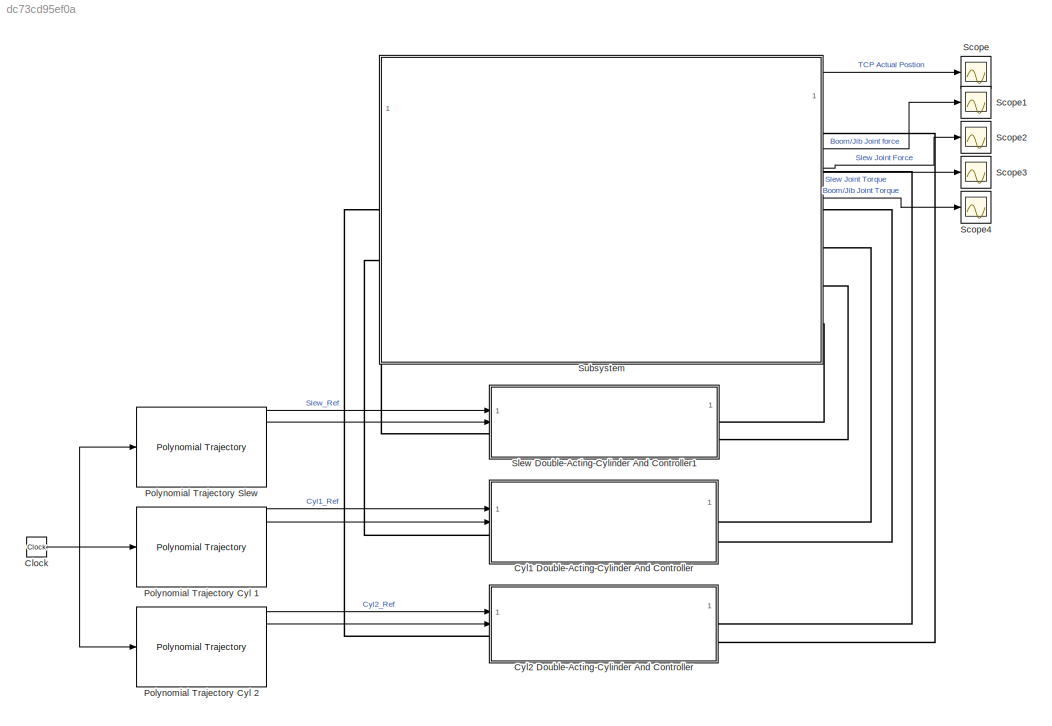
MODEL slx_dc73cd95ef0a
KIND model
CONFIG AbsTol = auto
CONFIG EnableMultiTasking = off
CONFIG FixedStep = 0.001
CONFIG MaxStep = auto
CONFIG MinStep = auto
CONFIG RelTol = 1e-3
CONFIG SampleTimeConstraint = Unconstrained
CONFIG SolverName = VariableStepAuto
CONFIG StartTime = 0.0
CONFIG StopTime = 41
BLOCK [Clock] Clock
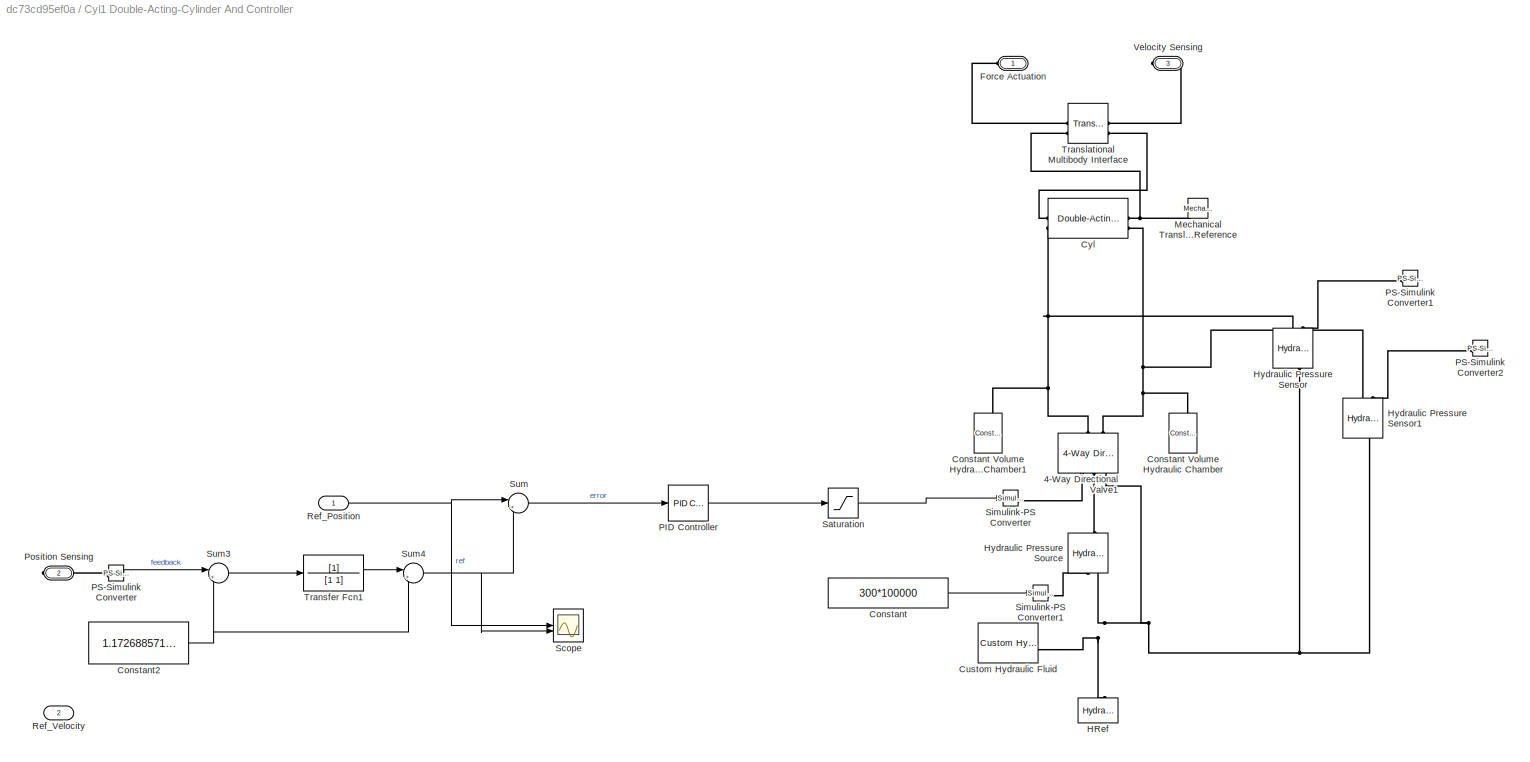
BLOCK [SubSystem] Cyl1 Double-Acting-Cylinder And Controller
  PortSchema = {"entries":[{"content":{"sides":[{"content":{"connectorIds":["LConn1","In1","In2"]},"type":"ConnectorPlacement.EquallySpacedRectSide","uuid":"3735ed3e-66b3-4361-8e3e-ac353a229971"},{"content":{"connectorIds":["RConn1","RConn2"],"side":"RIGHT"},"type":"ConnectorPlacement.EquallySpacedRectSide","uuid":"947d76e9-71c3-4ee6-82dc-1daca18839e3"},{"content":{"side":"TOP"},"type":"ConnectorPlacement.Equall...<+248ch>
BLOCK [Reference] Cyl1 Double-Acting-Cylinder And Controller/4-Way Directional Valve1  REF=sh_lib/Valves/Directional Valves/4-Way Directional
Valve
  NameLocation = right
  SourceBlock = sh_lib/Valves/Directional Valves/4-Way Directional\nValve
  SourceType = 4-Way Directional\nValve
BLOCK [Constant] Cyl1 Double-Acting-Cylinder And Controller/Constant
  Value = 300*100000
BLOCK [Reference] Cyl1 Double-Acting-Cylinder And Controller/Constant Volume Hydraulic Chamber  REF=fl_lib/Hydraulic/Hydraulic Elements/Constant Volume
Hydraulic Chamber
  NameLocation = right
  SourceBlock = fl_lib/Hydraulic/Hydraulic Elements/Constant Volume\nHydraulic Chamber
  SourceType = Constant Volume\nHydraulic Chamber
BLOCK [Reference] Cyl1 Double-Acting-Cylinder And Controller/Constant Volume Hydraulic Chamber1  REF=fl_lib/Hydraulic/Hydraulic Elements/Constant Volume
Hydraulic Chamber
  NameLocation = right
  SourceBlock = fl_lib/Hydraulic/Hydraulic Elements/Constant Volume\nHydraulic Chamber
  SourceType = Constant Volume\nHydraulic Chamber
BLOCK [Constant] Cyl1 Double-Acting-Cylinder And Controller/Constant2
  Value = 1.172688571370079
BLOCK [Reference] Cyl1 Double-Acting-Cylinder And Controller/Custom Hydraulic Fluid  REF=fl_lib/Hydraulic/Hydraulic Utilities/Custom Hydraulic
Fluid
  SourceBlock = fl_lib/Hydraulic/Hydraulic Utilities/Custom Hydraulic\nFluid
  SourceType = Custom Hydraulic\nFluid
BLOCK [Reference] Cyl1 Double-Acting-Cylinder And Controller/Cyl  REF=sh_lib/Hydraulic Cylinders/Double-Acting
Hydraulic Cylinder
  SourceBlock = sh_lib/Hydraulic Cylinders/Double-Acting\nHydraulic Cylinder
  SourceType = Double-Acting\nHydraulic Cylinder
  Tag = Factory Generic
BLOCK [PMIOPort] Cyl1 Double-Acting-Cylinder And Controller/Force Actuation
  Side = Left
BLOCK [Reference] Cyl1 Double-Acting-Cylinder And Controller/HRef  REF=fl_lib/Hydraulic/Hydraulic Elements/Hydraulic Reference
  NameLocation = left
  SourceBlock = fl_lib/Hydraulic/Hydraulic Elements/Hydraulic Reference
  SourceType = Hydraulic Reference
  Tag = Factory Generic
BLOCK [Reference] Cyl1 Double-Acting-Cylinder And Controller/Hydraulic Pressure Sensor  REF=fl_lib/Hydraulic/Hydraulic Sensors/Hydraulic Pressure
Sensor
  NameLocation = right
  SourceBlock = fl_lib/Hydraulic/Hydraulic Sensors/Hydraulic Pressure\nSensor
  SourceType = Hydraulic Pressure\nSensor
BLOCK [Reference] Cyl1 Double-Acting-Cylinder And Controller/Hydraulic Pressure Sensor1  REF=fl_lib/Hydraulic/Hydraulic Sensors/Hydraulic Pressure
Sensor
  NameLocation = right
  SourceBlock = fl_lib/Hydraulic/Hydraulic Sensors/Hydraulic Pressure\nSensor
  SourceType = Hydraulic Pressure\nSensor
BLOCK [Reference] Cyl1 Double-Acting-Cylinder And Controller/Hydraulic Pressure Source  REF=fl_lib/Hydraulic/Hydraulic Sources/Hydraulic Pressure
Source
  NameLocation = right
  SourceBlock = fl_lib/Hydraulic/Hydraulic Sources/Hydraulic Pressure\nSource
  SourceType = Hydraulic Pressure\nSource
BLOCK [Reference] Cyl1 Double-Acting-Cylinder And Controller/Mechanical Translational Reference  REF=fl_lib/Mechanical/Translational
Elements/Mechanical
Translational
Reference
  NameLocation = top
  SourceBlock = fl_lib/Mechanical/Translational\nElements/Mechanical\nTranslational\nReference
  SourceType = Mechanical\nTranslational\nReference
BLOCK [Reference] Cyl1 Double-Acting-Cylinder And Controller/PID Controller  REF=slpidlib/PID Controller
  LibrarySourceBlock = simulink/Continuous/PID Controller
  SourceBlock = slpidlib/PID Controller
  SourceType = PID 1dof
BLOCK [Reference] Cyl1 Double-Acting-Cylinder And Controller/PS-Simulink Converter  REF=nesl_utility/PS-Simulink
Converter
  SourceBlock = nesl_utility/PS-Simulink\nConverter
  SourceType = PS-Simulink\nConverter
BLOCK [Reference] Cyl1 Double-Acting-Cylinder And Controller/PS-Simulink Converter1  REF=nesl_utility/PS-Simulink
Converter
  SourceBlock = nesl_utility/PS-Simulink\nConverter
  SourceType = PS-Simulink\nConverter
BLOCK [Reference] Cyl1 Double-Acting-Cylinder And Controller/PS-Simulink Converter2  REF=nesl_utility/PS-Simulink
Converter
  SourceBlock = nesl_utility/PS-Simulink\nConverter
  SourceType = PS-Simulink\nConverter
BLOCK [PMIOPort] Cyl1 Double-Acting-Cylinder And Controller/Position Sensing
  Port = 2
  Side = Right
BLOCK [Inport] Cyl1 Double-Acting-Cylinder And Controller/Ref_Position
BLOCK [Inport] Cyl1 Double-Acting-Cylinder And Controller/Ref_Velocity
  Port = 2
BLOCK [Saturate] Cyl1 Double-Acting-Cylinder And Controller/Saturation
  LowerLimit = -1
  UpperLimit = 1
BLOCK [Scope] Cyl1 Double-Acting-Cylinder And Controller/Scope
  Floating = off
  NumInputPorts = 2
  ScopeSpecificationString = Simulink.scopes.TimeScopeBlockCfg('CurrentConfiguration', extmgr.ConfigurationSet(extmgr.Configuration('Core','General UI',true),extmgr.Configuration('Core','Source UI',true),extmgr.Configuration('Sources','WiredSimulink',true,'DataLoggingVariableName','ScopeData2'),extmgr.Configuration('Visuals','Time Domain',true,'SerializedDisplays',{struct('MinYLimReal','1.13435','MaxYLimReal','1.51774','YLabe...<+1435ch>
BLOCK [Reference] Cyl1 Double-Acting-Cylinder And Controller/Simulink-PS Converter  REF=nesl_utility/Simulink-PS
Converter
  SourceBlock = nesl_utility/Simulink-PS\nConverter
  SourceType = Simulink-PS\nConverter
BLOCK [Reference] Cyl1 Double-Acting-Cylinder And Controller/Simulink-PS Converter1  REF=nesl_utility/Simulink-PS
Converter
  SourceBlock = nesl_utility/Simulink-PS\nConverter
  SourceType = Simulink-PS\nConverter
BLOCK [Sum] Cyl1 Double-Acting-Cylinder And Controller/Sum
  Inputs = |+-
BLOCK [Sum] Cyl1 Double-Acting-Cylinder And Controller/Sum3
  Inputs = |+-
BLOCK [Sum] Cyl1 Double-Acting-Cylinder And Controller/Sum4
  Inputs = |++
BLOCK [TransferFcn] Cyl1 Double-Acting-Cylinder And Controller/Transfer Fcn1
  Denominator = [1 1]
BLOCK [Reference] Cyl1 Double-Acting-Cylinder And Controller/Translational Multibody Interface  REF=fl_lib/Mechanical/Multibody Interfaces/Translational
Multibody Interface
  SourceBlock = fl_lib/Mechanical/Multibody Interfaces/Translational\nMultibody Interface
  SourceType = Translational\nMultibody Interface
BLOCK [PMIOPort] Cyl1 Double-Acting-Cylinder And Controller/Velocity Sensing
  Port = 3
  Side = Right
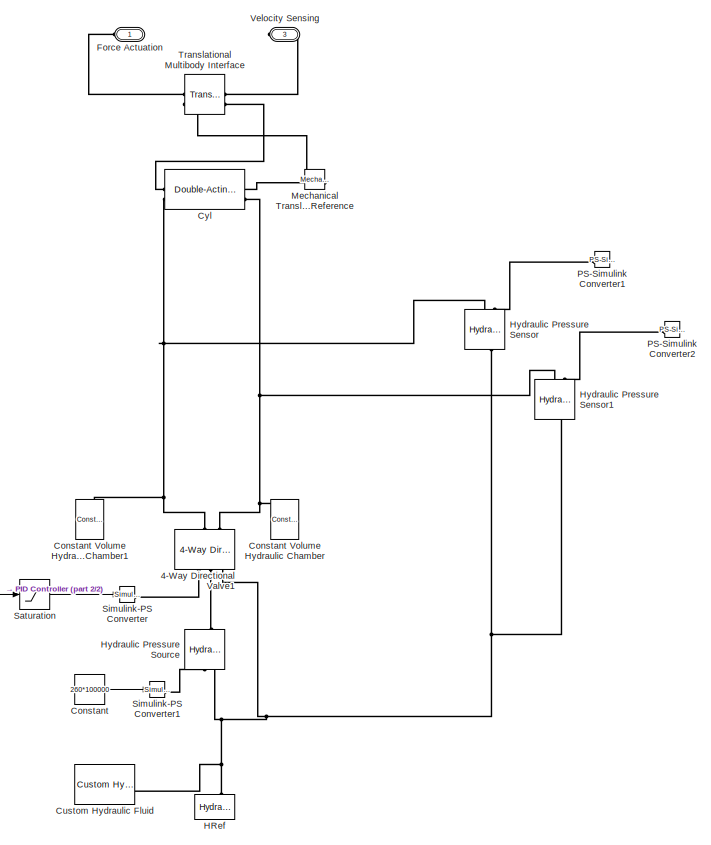
[diagram: Cyl2 Double-Acting-Cylinder And Controller - part 1/2, right side, full height]
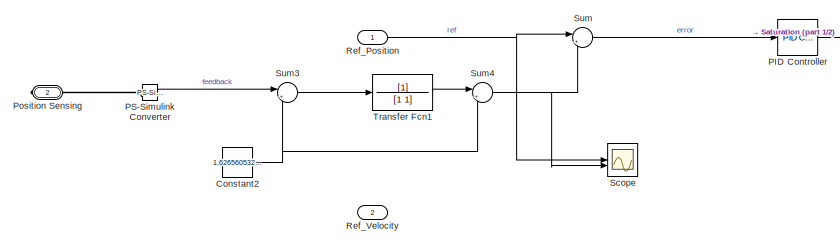
[diagram: Cyl2 Double-Acting-Cylinder And Controller - part 2/2, bottom left region]
BLOCK [SubSystem] Cyl2 Double-Acting-Cylinder And Controller
  PortSchema = {"entries":[{"content":{"sides":[{"content":{"connectorIds":["LConn1","In1","In2"]},"type":"ConnectorPlacement.EquallySpacedRectSide","uuid":"3735ed3e-66b3-4361-8e3e-ac353a229971"},{"content":{"connectorIds":["RConn1","RConn2"],"side":"RIGHT"},"type":"ConnectorPlacement.EquallySpacedRectSide","uuid":"947d76e9-71c3-4ee6-82dc-1daca18839e3"},{"content":{"side":"TOP"},"type":"ConnectorPlacement.Equall...<+248ch>
BLOCK [Reference] Cyl2 Double-Acting-Cylinder And Controller/4-Way Directional Valve1  REF=sh_lib/Valves/Directional Valves/4-Way Directional
Valve
  NameLocation = right
  SourceBlock = sh_lib/Valves/Directional Valves/4-Way Directional\nValve
  SourceType = 4-Way Directional\nValve
BLOCK [Constant] Cyl2 Double-Acting-Cylinder And Controller/Constant
  Value = 260*100000
BLOCK [Reference] Cyl2 Double-Acting-Cylinder And Controller/Constant Volume Hydraulic Chamber  REF=fl_lib/Hydraulic/Hydraulic Elements/Constant Volume
Hydraulic Chamber
  NameLocation = right
  SourceBlock = fl_lib/Hydraulic/Hydraulic Elements/Constant Volume\nHydraulic Chamber
  SourceType = Constant Volume\nHydraulic Chamber
BLOCK [Reference] Cyl2 Double-Acting-Cylinder And Controller/Constant Volume Hydraulic Chamber1  REF=fl_lib/Hydraulic/Hydraulic Elements/Constant Volume
Hydraulic Chamber
  NameLocation = right
  SourceBlock = fl_lib/Hydraulic/Hydraulic Elements/Constant Volume\nHydraulic Chamber
  SourceType = Constant Volume\nHydraulic Chamber
BLOCK [Constant] Cyl2 Double-Acting-Cylinder And Controller/Constant2
  Value = 1.626560532011881
BLOCK [Reference] Cyl2 Double-Acting-Cylinder And Controller/Custom Hydraulic Fluid  REF=fl_lib/Hydraulic/Hydraulic Utilities/Custom Hydraulic
Fluid
  SourceBlock = fl_lib/Hydraulic/Hydraulic Utilities/Custom Hydraulic\nFluid
  SourceType = Custom Hydraulic\nFluid
BLOCK [Reference] Cyl2 Double-Acting-Cylinder And Controller/Cyl  REF=sh_lib/Hydraulic Cylinders/Double-Acting
Hydraulic Cylinder
  SourceBlock = sh_lib/Hydraulic Cylinders/Double-Acting\nHydraulic Cylinder
  SourceType = Double-Acting\nHydraulic Cylinder
  Tag = Factory Generic
BLOCK [PMIOPort] Cyl2 Double-Acting-Cylinder And Controller/Force Actuation
  Side = Left
BLOCK [Reference] Cyl2 Double-Acting-Cylinder And Controller/HRef  REF=fl_lib/Hydraulic/Hydraulic Elements/Hydraulic Reference
  NameLocation = left
  SourceBlock = fl_lib/Hydraulic/Hydraulic Elements/Hydraulic Reference
  SourceType = Hydraulic Reference
  Tag = Factory Generic
BLOCK [Reference] Cyl2 Double-Acting-Cylinder And Controller/Hydraulic Pressure Sensor  REF=fl_lib/Hydraulic/Hydraulic Sensors/Hydraulic Pressure
Sensor
  NameLocation = right
  SourceBlock = fl_lib/Hydraulic/Hydraulic Sensors/Hydraulic Pressure\nSensor
  SourceType = Hydraulic Pressure\nSensor
BLOCK [Reference] Cyl2 Double-Acting-Cylinder And Controller/Hydraulic Pressure Sensor1  REF=fl_lib/Hydraulic/Hydraulic Sensors/Hydraulic Pressure
Sensor
  NameLocation = right
  SourceBlock = fl_lib/Hydraulic/Hydraulic Sensors/Hydraulic Pressure\nSensor
  SourceType = Hydraulic Pressure\nSensor
BLOCK [Reference] Cyl2 Double-Acting-Cylinder And Controller/Hydraulic Pressure Source  REF=fl_lib/Hydraulic/Hydraulic Sources/Hydraulic Pressure
Source
  NameLocation = right
  SourceBlock = fl_lib/Hydraulic/Hydraulic Sources/Hydraulic Pressure\nSource
  SourceType = Hydraulic Pressure\nSource
BLOCK [Reference] Cyl2 Double-Acting-Cylinder And Controller/Mechanical Translational Reference  REF=fl_lib/Mechanical/Translational
Elements/Mechanical
Translational
Reference
  NameLocation = top
  SourceBlock = fl_lib/Mechanical/Translational\nElements/Mechanical\nTranslational\nReference
  SourceType = Mechanical\nTranslational\nReference
BLOCK [Reference] Cyl2 Double-Acting-Cylinder And Controller/PID Controller  REF=slpidlib/PID Controller
  LibrarySourceBlock = simulink/Continuous/PID Controller
  SourceBlock = slpidlib/PID Controller
  SourceType = PID 1dof
BLOCK [Reference] Cyl2 Double-Acting-Cylinder And Controller/PS-Simulink Converter  REF=nesl_utility/PS-Simulink
Converter
  SourceBlock = nesl_utility/PS-Simulink\nConverter
  SourceType = PS-Simulink\nConverter
BLOCK [Reference] Cyl2 Double-Acting-Cylinder And Controller/PS-Simulink Converter1  REF=nesl_utility/PS-Simulink
Converter
  SourceBlock = nesl_utility/PS-Simulink\nConverter
  SourceType = PS-Simulink\nConverter
BLOCK [Reference] Cyl2 Double-Acting-Cylinder And Controller/PS-Simulink Converter2  REF=nesl_utility/PS-Simulink
Converter
  SourceBlock = nesl_utility/PS-Simulink\nConverter
  SourceType = PS-Simulink\nConverter
BLOCK [PMIOPort] Cyl2 Double-Acting-Cylinder And Controller/Position Sensing
  Port = 2
  Side = Right
BLOCK [Inport] Cyl2 Double-Acting-Cylinder And Controller/Ref_Position
BLOCK [Inport] Cyl2 Double-Acting-Cylinder And Controller/Ref_Velocity
  Port = 2
BLOCK [Saturate] Cyl2 Double-Acting-Cylinder And Controller/Saturation
  LowerLimit = -1
  UpperLimit = 1
BLOCK [Scope] Cyl2 Double-Acting-Cylinder And Controller/Scope
  Floating = off
  NumInputPorts = 2
  ScopeSpecificationString = Simulink.scopes.TimeScopeBlockCfg('CurrentConfiguration', extmgr.ConfigurationSet(extmgr.Configuration('Core','General UI',true),extmgr.Configuration('Core','Source UI',true),extmgr.Configuration('Sources','WiredSimulink',true,'DataLoggingVariableName','ScopeData3'),extmgr.Configuration('Visuals','Time Domain',true,'SerializedDisplays',{struct('MinYLimReal','1.41879','MaxYLimReal','1.64968','YLabe...<+1422ch>
BLOCK [Reference] Cyl2 Double-Acting-Cylinder And Controller/Simulink-PS Converter  REF=nesl_utility/Simulink-PS
Converter
  SourceBlock = nesl_utility/Simulink-PS\nConverter
  SourceType = Simulink-PS\nConverter
BLOCK [Reference] Cyl2 Double-Acting-Cylinder And Controller/Simulink-PS Converter1  REF=nesl_utility/Simulink-PS
Converter
  SourceBlock = nesl_utility/Simulink-PS\nConverter
  SourceType = Simulink-PS\nConverter
BLOCK [Sum] Cyl2 Double-Acting-Cylinder And Controller/Sum
  Inputs = |+-
BLOCK [Sum] Cyl2 Double-Acting-Cylinder And Controller/Sum3
  Inputs = |+-
BLOCK [Sum] Cyl2 Double-Acting-Cylinder And Controller/Sum4
  Inputs = |++
BLOCK [TransferFcn] Cyl2 Double-Acting-Cylinder And Controller/Transfer Fcn1
  Denominator = [1 1]
BLOCK [Reference] Cyl2 Double-Acting-Cylinder And Controller/Translational Multibody Interface  REF=fl_lib/Mechanical/Multibody Interfaces/Translational
Multibody Interface
  SourceBlock = fl_lib/Mechanical/Multibody Interfaces/Translational\nMultibody Interface
  SourceType = Translational\nMultibody Interface
BLOCK [PMIOPort] Cyl2 Double-Acting-Cylinder And Controller/Velocity Sensing
  Port = 3
  Side = Right
BLOCK [Reference] Polynomial Trajectory Cyl 1  REF=robotcorelib/Polynomial Trajectory
  LibrarySourceBlock = robotutilslib/Polynomial Trajectory
  SourceBlock = robotcorelib/Polynomial Trajectory
  SourceType = robotics.slcore.internal.block.PolyTrajSys
BLOCK [Reference] Polynomial Trajectory Cyl 2  REF=robotcorelib/Polynomial Trajectory
  LibrarySourceBlock = robotutilslib/Polynomial Trajectory
  SourceBlock = robotcorelib/Polynomial Trajectory
  SourceType = robotics.slcore.internal.block.PolyTrajSys
BLOCK [Reference] Polynomial Trajectory Slew  REF=robotcorelib/Polynomial Trajectory
  LibrarySourceBlock = robotutilslib/Polynomial Trajectory
  SourceBlock = robotcorelib/Polynomial Trajectory
  SourceType = robotics.slcore.internal.block.PolyTrajSys
BLOCK [Scope] Scope
  Commented = on
  Floating = off
  NumInputPorts = 1
  ScopeSpecificationString = Simulink.scopes.TimeScopeBlockCfg('CurrentConfiguration', extmgr.ConfigurationSet(extmgr.Configuration('Core','General UI',true),extmgr.Configuration('Core','Source UI',true),extmgr.Configuration('Sources','WiredSimulink',true),extmgr.Configuration('Visuals','Time Domain',true,'SerializedDisplays',{struct('MinYLimReal','-2.882','MaxYLimReal','3.9351','YLabelReal','','MinYLimMag','0.00000','MaxYLim...<+1396ch>
BLOCK [Scope] Scope1
  Commented = on
  Floating = off
  NumInputPorts = 1
  ScopeSpecificationString = Simulink.scopes.TimeScopeBlockCfg('CurrentConfiguration', extmgr.ConfigurationSet(extmgr.Configuration('Core','General UI',true),extmgr.Configuration('Core','Source UI',true),extmgr.Configuration('Sources','WiredSimulink',true,'DataLoggingVariableName','ScopeData1'),extmgr.Configuration('Visuals','Time Domain',true,'SerializedDisplays',{struct('MinYLimReal','-122424.60187','MaxYLimReal','217376.11...<+1505ch>
BLOCK [Scope] Scope2
  Commented = on
  Floating = off
  NumInputPorts = 1
  ScopeSpecificationString = Simulink.scopes.TimeScopeBlockCfg('CurrentConfiguration', extmgr.ConfigurationSet(extmgr.Configuration('Core','General UI',true),extmgr.Configuration('Core','Source UI',true),extmgr.Configuration('Sources','WiredSimulink',true,'DataLoggingVariableName','ScopeData2'),extmgr.Configuration('Visuals','Time Domain',true,'SerializedDisplays',{struct('MinYLimReal','-41084.57147','MaxYLimReal','26009.9426...<+1447ch>
BLOCK [Scope] Scope3
  Commented = on
  Floating = off
  NumInputPorts = 1
  ScopeSpecificationString = Simulink.scopes.TimeScopeBlockCfg('CurrentConfiguration', extmgr.ConfigurationSet(extmgr.Configuration('Core','General UI',true),extmgr.Configuration('Core','Source UI',true),extmgr.Configuration('Sources','WiredSimulink',true,'DataLoggingVariableName','ScopeData3'),extmgr.Configuration('Visuals','Time Domain',true,'SerializedDisplays',{struct('MinYLimReal','-79425.33864','MaxYLimReal','71254.3750...<+1484ch>
BLOCK [Scope] Scope4
  Commented = on
  Floating = off
  NumInputPorts = 1
  ScopeSpecificationString = Simulink.scopes.TimeScopeBlockCfg('CurrentConfiguration', extmgr.ConfigurationSet(extmgr.Configuration('Core','General UI',true),extmgr.Configuration('Core','Source UI',true),extmgr.Configuration('Sources','WiredSimulink',true,'DataLoggingVariableName','ScopeData4'),extmgr.Configuration('Visuals','Time Domain',true,'SerializedDisplays',{struct('MinYLimReal','-6381.34352','MaxYLimReal','1789.90729'...<+1454ch>
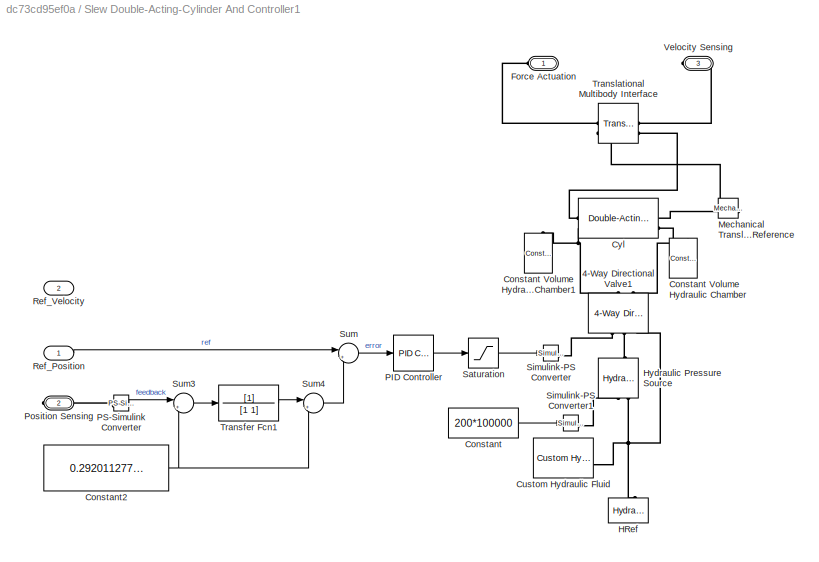
BLOCK [SubSystem] Slew Double-Acting-Cylinder And Controller1
  PortSchema = {"entries":[{"content":{"sides":[{"content":{"connectorIds":["LConn1","In1","In2"]},"type":"ConnectorPlacement.EquallySpacedRectSide","uuid":"3735ed3e-66b3-4361-8e3e-ac353a229971"},{"content":{"connectorIds":["RConn1","RConn2"],"side":"RIGHT"},"type":"ConnectorPlacement.EquallySpacedRectSide","uuid":"947d76e9-71c3-4ee6-82dc-1daca18839e3"},{"content":{"side":"TOP"},"type":"ConnectorPlacement.Equall...<+374ch>
BLOCK [Reference] Slew Double-Acting-Cylinder And Controller1/4-Way Directional Valve1  REF=sh_lib/Valves/Directional Valves/4-Way Directional
Valve
  NameLocation = right
  SourceBlock = sh_lib/Valves/Directional Valves/4-Way Directional\nValve
  SourceType = 4-Way Directional\nValve
BLOCK [Constant] Slew Double-Acting-Cylinder And Controller1/Constant
  Value = 200*100000
BLOCK [Reference] Slew Double-Acting-Cylinder And Controller1/Constant Volume Hydraulic Chamber  REF=fl_lib/Hydraulic/Hydraulic Elements/Constant Volume
Hydraulic Chamber
  NameLocation = right
  SourceBlock = fl_lib/Hydraulic/Hydraulic Elements/Constant Volume\nHydraulic Chamber
  SourceType = Constant Volume\nHydraulic Chamber
BLOCK [Reference] Slew Double-Acting-Cylinder And Controller1/Constant Volume Hydraulic Chamber1  REF=fl_lib/Hydraulic/Hydraulic Elements/Constant Volume
Hydraulic Chamber
  NameLocation = right
  SourceBlock = fl_lib/Hydraulic/Hydraulic Elements/Constant Volume\nHydraulic Chamber
  SourceType = Constant Volume\nHydraulic Chamber
BLOCK [Constant] Slew Double-Acting-Cylinder And Controller1/Constant2
  Value = 0.292011277728187
BLOCK [Reference] Slew Double-Acting-Cylinder And Controller1/Custom Hydraulic Fluid  REF=fl_lib/Hydraulic/Hydraulic Utilities/Custom Hydraulic
Fluid
  SourceBlock = fl_lib/Hydraulic/Hydraulic Utilities/Custom Hydraulic\nFluid
  SourceType = Custom Hydraulic\nFluid
BLOCK [Reference] Slew Double-Acting-Cylinder And Controller1/Cyl  REF=sh_lib/Hydraulic Cylinders/Double-Acting
Hydraulic Cylinder
  SourceBlock = sh_lib/Hydraulic Cylinders/Double-Acting\nHydraulic Cylinder
  SourceType = Double-Acting\nHydraulic Cylinder
  Tag = Factory Generic
BLOCK [PMIOPort] Slew Double-Acting-Cylinder And Controller1/Force Actuation
  Side = Left
BLOCK [Reference] Slew Double-Acting-Cylinder And Controller1/HRef  REF=fl_lib/Hydraulic/Hydraulic Elements/Hydraulic Reference
  NameLocation = left
  SourceBlock = fl_lib/Hydraulic/Hydraulic Elements/Hydraulic Reference
  SourceType = Hydraulic Reference
  Tag = Factory Generic
BLOCK [Reference] Slew Double-Acting-Cylinder And Controller1/Hydraulic Pressure Source  REF=fl_lib/Hydraulic/Hydraulic Sources/Hydraulic Pressure
Source
  NameLocation = right
  SourceBlock = fl_lib/Hydraulic/Hydraulic Sources/Hydraulic Pressure\nSource
  SourceType = Hydraulic Pressure\nSource
BLOCK [Reference] Slew Double-Acting-Cylinder And Controller1/Mechanical Translational Reference  REF=fl_lib/Mechanical/Translational
Elements/Mechanical
Translational
Reference
  NameLocation = top
  SourceBlock = fl_lib/Mechanical/Translational\nElements/Mechanical\nTranslational\nReference
  SourceType = Mechanical\nTranslational\nReference
BLOCK [Reference] Slew Double-Acting-Cylinder And Controller1/PID Controller  REF=slpidlib/PID Controller
  LibrarySourceBlock = simulink/Continuous/PID Controller
  SourceBlock = slpidlib/PID Controller
  SourceType = PID 1dof
BLOCK [Reference] Slew Double-Acting-Cylinder And Controller1/PS-Simulink Converter  REF=nesl_utility/PS-Simulink
Converter
  SourceBlock = nesl_utility/PS-Simulink\nConverter
  SourceType = PS-Simulink\nConverter
BLOCK [PMIOPort] Slew Double-Acting-Cylinder And Controller1/Position Sensing
  Port = 2
  Side = Right
BLOCK [Inport] Slew Double-Acting-Cylinder And Controller1/Ref_Position
BLOCK [Inport] Slew Double-Acting-Cylinder And Controller1/Ref_Velocity
  Port = 2
BLOCK [Saturate] Slew Double-Acting-Cylinder And Controller1/Saturation
  LowerLimit = -1
  UpperLimit = 1
BLOCK [Reference] Slew Double-Acting-Cylinder And Controller1/Simulink-PS Converter  REF=nesl_utility/Simulink-PS
Converter
  SourceBlock = nesl_utility/Simulink-PS\nConverter
  SourceType = Simulink-PS\nConverter
BLOCK [Reference] Slew Double-Acting-Cylinder And Controller1/Simulink-PS Converter1  REF=nesl_utility/Simulink-PS
Converter
  SourceBlock = nesl_utility/Simulink-PS\nConverter
  SourceType = Simulink-PS\nConverter
BLOCK [Sum] Slew Double-Acting-Cylinder And Controller1/Sum
  Inputs = |+-
BLOCK [Sum] Slew Double-Acting-Cylinder And Controller1/Sum3
  Inputs = |+-
BLOCK [Sum] Slew Double-Acting-Cylinder And Controller1/Sum4
  Inputs = |++
BLOCK [TransferFcn] Slew Double-Acting-Cylinder And Controller1/Transfer Fcn1
  Denominator = [1 1]
BLOCK [Reference] Slew Double-Acting-Cylinder And Controller1/Translational Multibody Interface  REF=fl_lib/Mechanical/Multibody Interfaces/Translational
Multibody Interface
  SourceBlock = fl_lib/Mechanical/Multibody Interfaces/Translational\nMultibody Interface
  SourceType = Translational\nMultibody Interface
BLOCK [PMIOPort] Slew Double-Acting-Cylinder And Controller1/Velocity Sensing
  Port = 3
  Side = Right
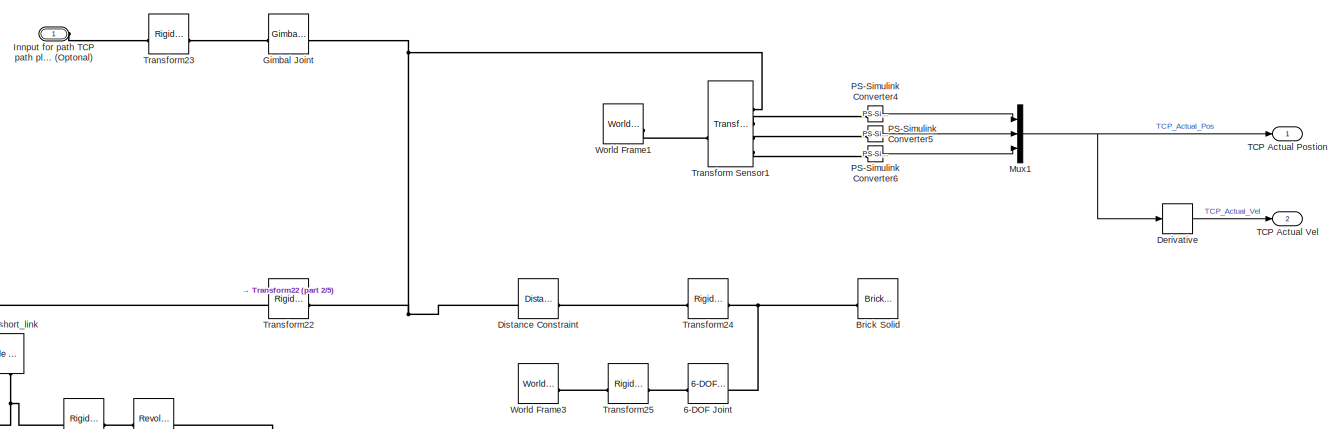
[diagram: Subsystem - part 1/5, top right region]
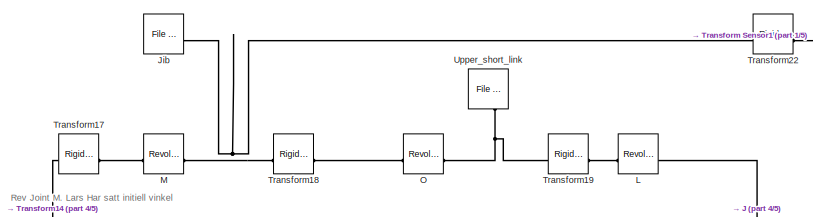
[diagram: Subsystem - part 2/5, top center region]
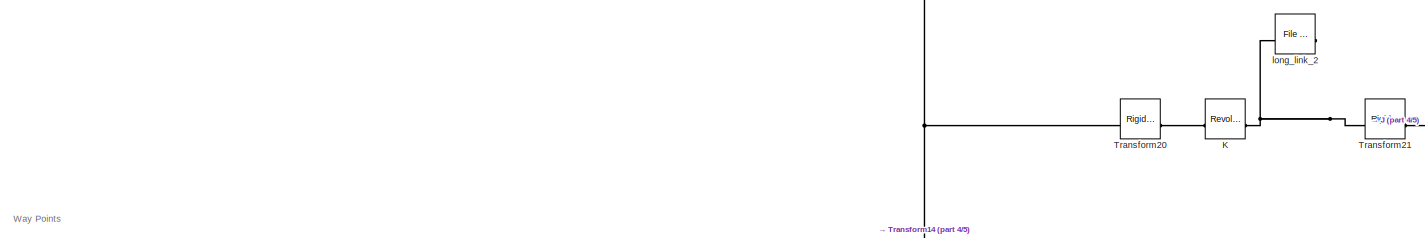
[diagram: Subsystem - part 3/5, middle left region]
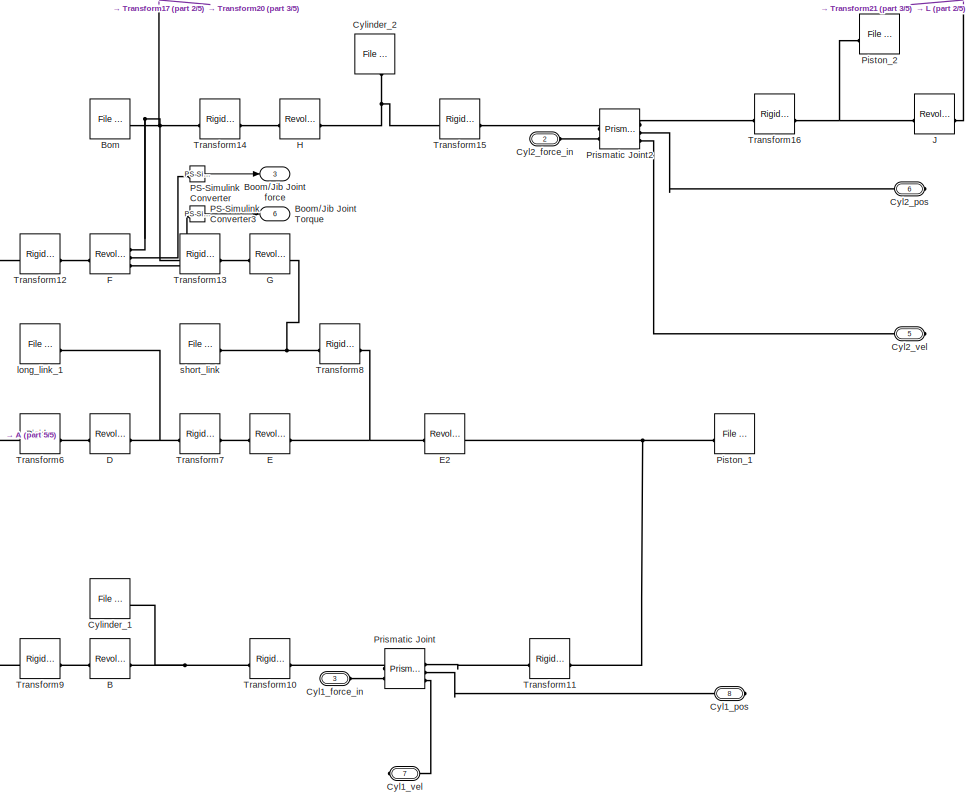
[diagram: Subsystem - part 4/5, bottom center region]
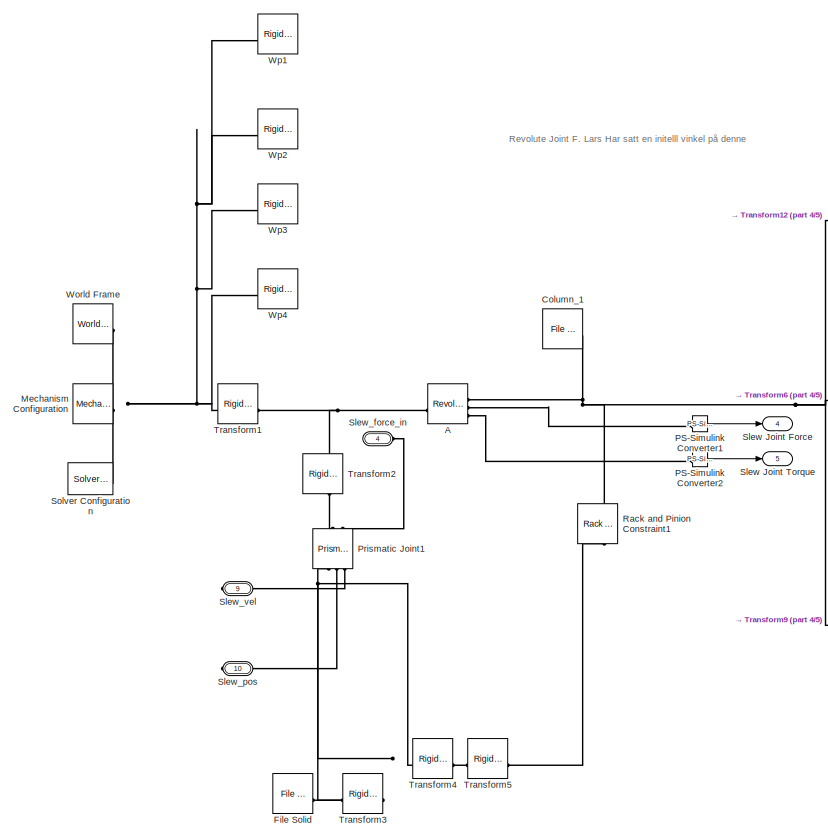
[diagram: Subsystem - part 5/5, bottom left region]
BLOCK [SubSystem] Subsystem
BLOCK [Reference] Subsystem/6-DOF Joint  REF=sm_lib/Joints/6-DOF Joint
  SourceBlock = sm_lib/Joints/6-DOF Joint
  SourceType = 6-DOF Joint
BLOCK [Reference] Subsystem/A  REF=sm_lib/Joints/Revolute Joint
  SourceBlock = sm_lib/Joints/Revolute Joint
  SourceType = Revolute Joint
BLOCK [Reference] Subsystem/B  REF=sm_lib/Joints/Revolute Joint
  SourceBlock = sm_lib/Joints/Revolute Joint
  SourceType = Revolute Joint
BLOCK [Reference] Subsystem/Bom  REF=sm_lib/Body Elements/File Solid
  SourceBlock = sm_lib/Body Elements/File Solid
  SourceType = File Solid
BLOCK [Outport] Subsystem/Boom//Jib Joint Torque
  Port = 6
BLOCK [Outport] Subsystem/Boom//Jib Joint force
  Port = 3
BLOCK [Reference] Subsystem/Brick Solid  REF=sm_lib/Body Elements/Brick Solid
  NameLocation = top
  SourceBlock = sm_lib/Body Elements/Brick Solid
  SourceType = Brick Solid
BLOCK [Reference] Subsystem/Column_1  REF=sm_lib/Body Elements/File Solid
  SourceBlock = sm_lib/Body Elements/File Solid
  SourceType = File Solid
BLOCK [PMIOPort] Subsystem/Cyl1_force_in
  Port = 3
  Side = Left
BLOCK [PMIOPort] Subsystem/Cyl1_pos
  Port = 8
  Side = Right
BLOCK [PMIOPort] Subsystem/Cyl1_vel
  Port = 7
  Side = Right
BLOCK [PMIOPort] Subsystem/Cyl2_force_in
  Port = 2
  Side = Left
BLOCK [PMIOPort] Subsystem/Cyl2_pos
  Port = 6
  Side = Right
BLOCK [PMIOPort] Subsystem/Cyl2_vel
  Port = 5
  Side = Right
BLOCK [Reference] Subsystem/Cylinder_1  REF=sm_lib/Body Elements/File Solid
  SourceBlock = sm_lib/Body Elements/File Solid
  SourceType = File Solid
BLOCK [Reference] Subsystem/Cylinder_2  REF=sm_lib/Body Elements/File Solid
  NameLocation = left
  SourceBlock = sm_lib/Body Elements/File Solid
  SourceType = File Solid
BLOCK [Reference] Subsystem/D  REF=sm_lib/Joints/Revolute Joint
  SourceBlock = sm_lib/Joints/Revolute Joint
  SourceType = Revolute Joint
BLOCK [Derivative] Subsystem/Derivative
  Commented = on
BLOCK [Reference] Subsystem/Distance Constraint  REF=sm_lib/Constraints/Distance
Constraint
  SourceBlock = sm_lib/Constraints/Distance\nConstraint
  SourceType = Distance\nConstraint
BLOCK [Reference] Subsystem/E  REF=sm_lib/Joints/Revolute Joint
  SourceBlock = sm_lib/Joints/Revolute Joint
  SourceType = Revolute Joint
BLOCK [Reference] Subsystem/E2  REF=sm_lib/Joints/Revolute Joint
  SourceBlock = sm_lib/Joints/Revolute Joint
  SourceType = Revolute Joint
BLOCK [Reference] Subsystem/F  REF=sm_lib/Joints/Revolute Joint
  SourceBlock = sm_lib/Joints/Revolute Joint
  SourceType = Revolute Joint
BLOCK [Reference] Subsystem/File Solid  REF=sm_lib/Body Elements/File Solid
  SourceBlock = sm_lib/Body Elements/File Solid
  SourceType = File Solid
BLOCK [Reference] Subsystem/G  REF=sm_lib/Joints/Revolute Joint
  SourceBlock = sm_lib/Joints/Revolute Joint
  SourceType = Revolute Joint
BLOCK [Reference] Subsystem/Gimbal Joint  REF=sm_lib/Joints/Gimbal Joint
  Commented = on
  SourceBlock = sm_lib/Joints/Gimbal Joint
  SourceType = Gimbal Joint
BLOCK [Reference] Subsystem/H  REF=sm_lib/Joints/Revolute Joint
  SourceBlock = sm_lib/Joints/Revolute Joint
  SourceType = Revolute Joint
BLOCK [PMIOPort] Subsystem/Innput for path TCP path planner (Optonal)
  Side = Left
BLOCK [Reference] Subsystem/J  REF=sm_lib/Joints/Revolute Joint
  SourceBlock = sm_lib/Joints/Revolute Joint
  SourceType = Revolute Joint
BLOCK [Reference] Subsystem/Jib  REF=sm_lib/Body Elements/File Solid
  SourceBlock = sm_lib/Body Elements/File Solid
  SourceType = File Solid
BLOCK [Reference] Subsystem/K  REF=sm_lib/Joints/Revolute Joint
  SourceBlock = sm_lib/Joints/Revolute Joint
  SourceType = Revolute Joint
BLOCK [Reference] Subsystem/L  REF=sm_lib/Joints/Revolute Joint
  SourceBlock = sm_lib/Joints/Revolute Joint
  SourceType = Revolute Joint
BLOCK [Reference] Subsystem/M  REF=sm_lib/Joints/Revolute Joint
  SourceBlock = sm_lib/Joints/Revolute Joint
  SourceType = Revolute Joint
BLOCK [Reference] Subsystem/Mechanism Configuration  REF=sm_lib/Utilities/Mechanism
Configuration
  SourceBlock = sm_lib/Utilities/Mechanism\nConfiguration
  SourceType = Mechanism\nConfiguration
BLOCK [Mux] Subsystem/Mux1
  DisplayOption = bar
  Inputs = 3
BLOCK [Reference] Subsystem/O  REF=sm_lib/Joints/Revolute Joint
  SourceBlock = sm_lib/Joints/Revolute Joint
  SourceType = Revolute Joint
BLOCK [Reference] Subsystem/PS-Simulink Converter  REF=nesl_utility/PS-Simulink
Converter
  SourceBlock = nesl_utility/PS-Simulink\nConverter
  SourceType = PS-Simulink\nConverter
BLOCK [Reference] Subsystem/PS-Simulink Converter1  REF=nesl_utility/PS-Simulink
Converter
  SourceBlock = nesl_utility/PS-Simulink\nConverter
  SourceType = PS-Simulink\nConverter
BLOCK [Reference] Subsystem/PS-Simulink Converter2  REF=nesl_utility/PS-Simulink
Converter
  SourceBlock = nesl_utility/PS-Simulink\nConverter
  SourceType = PS-Simulink\nConverter
BLOCK [Reference] Subsystem/PS-Simulink Converter3  REF=nesl_utility/PS-Simulink
Converter
  SourceBlock = nesl_utility/PS-Simulink\nConverter
  SourceType = PS-Simulink\nConverter
BLOCK [Reference] Subsystem/PS-Simulink Converter4  REF=nesl_utility/PS-Simulink
Converter
  SourceBlock = nesl_utility/PS-Simulink\nConverter
  SourceType = PS-Simulink\nConverter
BLOCK [Reference] Subsystem/PS-Simulink Converter5  REF=nesl_utility/PS-Simulink
Converter
  SourceBlock = nesl_utility/PS-Simulink\nConverter
  SourceType = PS-Simulink\nConverter
BLOCK [Reference] Subsystem/PS-Simulink Converter6  REF=nesl_utility/PS-Simulink
Converter
  SourceBlock = nesl_utility/PS-Simulink\nConverter
  SourceType = PS-Simulink\nConverter
BLOCK [Reference] Subsystem/Piston_1  REF=sm_lib/Body Elements/File Solid
  SourceBlock = sm_lib/Body Elements/File Solid
  SourceType = File Solid
BLOCK [Reference] Subsystem/Piston_2  REF=sm_lib/Body Elements/File Solid
  SourceBlock = sm_lib/Body Elements/File Solid
  SourceType = File Solid
BLOCK [Reference] Subsystem/Prismatic Joint  REF=sm_lib/Joints/Prismatic
Joint
  SourceBlock = sm_lib/Joints/Prismatic\nJoint
  SourceType = Prismatic\nJoint
BLOCK [Reference] Subsystem/Prismatic Joint1  REF=sm_lib/Joints/Prismatic
Joint
  NameLocation = left
  SourceBlock = sm_lib/Joints/Prismatic\nJoint
  SourceType = Prismatic\nJoint
BLOCK [Reference] Subsystem/Prismatic Joint2  REF=sm_lib/Joints/Prismatic
Joint
  SourceBlock = sm_lib/Joints/Prismatic\nJoint
  SourceType = Prismatic\nJoint
BLOCK [Reference] Subsystem/Rack and Pinion Constraint1  REF=sm_lib/Gears and
Couplings/Gears/Rack and Pinion
Constraint
  NameLocation = left
  SourceBlock = sm_lib/Gears and\nCouplings/Gears/Rack and Pinion\nConstraint
  SourceType = Rack and Pinion\nConstraint
BLOCK [Outport] Subsystem/Slew Joint Force
  Port = 4
BLOCK [Outport] Subsystem/Slew Joint Torque
  Port = 5
BLOCK [PMIOPort] Subsystem/Slew_force_in
  Port = 4
  Side = Left
BLOCK [PMIOPort] Subsystem/Slew_pos
  Port = 10
  Side = Right
BLOCK [PMIOPort] Subsystem/Slew_vel
  Port = 9
  Side = Right
BLOCK [Reference] Subsystem/Solver Configuration  REF=nesl_utility/Solver
Configuration
  SourceBlock = nesl_utility/Solver\nConfiguration
  SourceType = Solver\nConfiguration
BLOCK [Outport] Subsystem/TCP Actual Postion
BLOCK [Outport] Subsystem/TCP Actual Vel
  Port = 2
BLOCK [Reference] Subsystem/Transform Sensor1  REF=sm_lib/Frames and
Transforms/Transform
Sensor
  SourceBlock = sm_lib/Frames and\nTransforms/Transform\nSensor
  SourceType = Transform\nSensor
BLOCK [Reference] Subsystem/Transform1  REF=sm_lib/Frames and
Transforms/Rigid
Transform
  SourceBlock = sm_lib/Frames and\nTransforms/Rigid\nTransform
  SourceType = Rigid\nTransform
BLOCK [Reference] Subsystem/Transform10  REF=sm_lib/Frames and
Transforms/Rigid
Transform
  SourceBlock = sm_lib/Frames and\nTransforms/Rigid\nTransform
  SourceType = Rigid\nTransform
BLOCK [Reference] Subsystem/Transform11  REF=sm_lib/Frames and
Transforms/Rigid
Transform
  SourceBlock = sm_lib/Frames and\nTransforms/Rigid\nTransform
  SourceType = Rigid\nTransform
BLOCK [Reference] Subsystem/Transform12  REF=sm_lib/Frames and
Transforms/Rigid
Transform
  SourceBlock = sm_lib/Frames and\nTransforms/Rigid\nTransform
  SourceType = Rigid\nTransform
BLOCK [Reference] Subsystem/Transform13  REF=sm_lib/Frames and
Transforms/Rigid
Transform
  SourceBlock = sm_lib/Frames and\nTransforms/Rigid\nTransform
  SourceType = Rigid\nTransform
BLOCK [Reference] Subsystem/Transform14  REF=sm_lib/Frames and
Transforms/Rigid
Transform
  SourceBlock = sm_lib/Frames and\nTransforms/Rigid\nTransform
  SourceType = Rigid\nTransform
BLOCK [Reference] Subsystem/Transform15  REF=sm_lib/Frames and
Transforms/Rigid
Transform
  SourceBlock = sm_lib/Frames and\nTransforms/Rigid\nTransform
  SourceType = Rigid\nTransform
BLOCK [Reference] Subsystem/Transform16  REF=sm_lib/Frames and
Transforms/Rigid
Transform
  NameLocation = top
  SourceBlock = sm_lib/Frames and\nTransforms/Rigid\nTransform
  SourceType = Rigid\nTransform
BLOCK [Reference] Subsystem/Transform17  REF=sm_lib/Frames and
Transforms/Rigid
Transform
  SourceBlock = sm_lib/Frames and\nTransforms/Rigid\nTransform
  SourceType = Rigid\nTransform
BLOCK [Reference] Subsystem/Transform18  REF=sm_lib/Frames and
Transforms/Rigid
Transform
  SourceBlock = sm_lib/Frames and\nTransforms/Rigid\nTransform
  SourceType = Rigid\nTransform
BLOCK [Reference] Subsystem/Transform19  REF=sm_lib/Frames and
Transforms/Rigid
Transform
  SourceBlock = sm_lib/Frames and\nTransforms/Rigid\nTransform
  SourceType = Rigid\nTransform
BLOCK [Reference] Subsystem/Transform2  REF=sm_lib/Frames and
Transforms/Rigid
Transform
  NameLocation = left
  SourceBlock = sm_lib/Frames and\nTransforms/Rigid\nTransform
  SourceType = Rigid\nTransform
BLOCK [Reference] Subsystem/Transform20  REF=sm_lib/Frames and
Transforms/Rigid
Transform
  SourceBlock = sm_lib/Frames and\nTransforms/Rigid\nTransform
  SourceType = Rigid\nTransform
BLOCK [Reference] Subsystem/Transform21  REF=sm_lib/Frames and
Transforms/Rigid
Transform
  SourceBlock = sm_lib/Frames and\nTransforms/Rigid\nTransform
  SourceType = Rigid\nTransform
BLOCK [Reference] Subsystem/Transform22  REF=sm_lib/Frames and
Transforms/Rigid
Transform
  SourceBlock = sm_lib/Frames and\nTransforms/Rigid\nTransform
  SourceType = Rigid\nTransform
BLOCK [Reference] Subsystem/Transform23  REF=sm_lib/Frames and
Transforms/Rigid
Transform
  Commented = on
  SourceBlock = sm_lib/Frames and\nTransforms/Rigid\nTransform
  SourceType = Rigid\nTransform
BLOCK [Reference] Subsystem/Transform24  REF=sm_lib/Frames and
Transforms/Rigid
Transform
  SourceBlock = sm_lib/Frames and\nTransforms/Rigid\nTransform
  SourceType = Rigid\nTransform
BLOCK [Reference] Subsystem/Transform25  REF=sm_lib/Frames and
Transforms/Rigid
Transform
  SourceBlock = sm_lib/Frames and\nTransforms/Rigid\nTransform
  SourceType = Rigid\nTransform
BLOCK [Reference] Subsystem/Transform3  REF=sm_lib/Frames and
Transforms/Rigid
Transform
  SourceBlock = sm_lib/Frames and\nTransforms/Rigid\nTransform
  SourceType = Rigid\nTransform
BLOCK [Reference] Subsystem/Transform4  REF=sm_lib/Frames and
Transforms/Rigid
Transform
  SourceBlock = sm_lib/Frames and\nTransforms/Rigid\nTransform
  SourceType = Rigid\nTransform
BLOCK [Reference] Subsystem/Transform5  REF=sm_lib/Frames and
Transforms/Rigid
Transform
  SourceBlock = sm_lib/Frames and\nTransforms/Rigid\nTransform
  SourceType = Rigid\nTransform
BLOCK [Reference] Subsystem/Transform6  REF=sm_lib/Frames and
Transforms/Rigid
Transform
  SourceBlock = sm_lib/Frames and\nTransforms/Rigid\nTransform
  SourceType = Rigid\nTransform
BLOCK [Reference] Subsystem/Transform7  REF=sm_lib/Frames and
Transforms/Rigid
Transform
  SourceBlock = sm_lib/Frames and\nTransforms/Rigid\nTransform
  SourceType = Rigid\nTransform
BLOCK [Reference] Subsystem/Transform8  REF=sm_lib/Frames and
Transforms/Rigid
Transform
  SourceBlock = sm_lib/Frames and\nTransforms/Rigid\nTransform
  SourceType = Rigid\nTransform
BLOCK [Reference] Subsystem/Transform9  REF=sm_lib/Frames and
Transforms/Rigid
Transform
  SourceBlock = sm_lib/Frames and\nTransforms/Rigid\nTransform
  SourceType = Rigid\nTransform
BLOCK [Reference] Subsystem/Upper_short_link  REF=sm_lib/Body Elements/File Solid
  NameLocation = left
  SourceBlock = sm_lib/Body Elements/File Solid
  SourceType = File Solid
BLOCK [Reference] Subsystem/World Frame  REF=sm_lib/Frames and
Transforms/World Frame
  SourceBlock = sm_lib/Frames and\nTransforms/World Frame
  SourceType = World Frame
BLOCK [Reference] Subsystem/World Frame1  REF=sm_lib/Frames and
Transforms/World Frame
  SourceBlock = sm_lib/Frames and\nTransforms/World Frame
  SourceType = World Frame
BLOCK [Reference] Subsystem/World Frame3  REF=sm_lib/Frames and
Transforms/World Frame
  SourceBlock = sm_lib/Frames and\nTransforms/World Frame
  SourceType = World Frame
BLOCK [Reference] Subsystem/Wp1  REF=sm_lib/Frames and
Transforms/Rigid
Transform
  SourceBlock = sm_lib/Frames and\nTransforms/Rigid\nTransform
  SourceType = Rigid\nTransform
BLOCK [Reference] Subsystem/Wp2  REF=sm_lib/Frames and
Transforms/Rigid
Transform
  SourceBlock = sm_lib/Frames and\nTransforms/Rigid\nTransform
  SourceType = Rigid\nTransform
BLOCK [Reference] Subsystem/Wp3  REF=sm_lib/Frames and
Transforms/Rigid
Transform
  SourceBlock = sm_lib/Frames and\nTransforms/Rigid\nTransform
  SourceType = Rigid\nTransform
BLOCK [Reference] Subsystem/Wp4  REF=sm_lib/Frames and
Transforms/Rigid
Transform
  SourceBlock = sm_lib/Frames and\nTransforms/Rigid\nTransform
  SourceType = Rigid\nTransform
BLOCK [Reference] Subsystem/long_link_1  REF=sm_lib/Body Elements/File Solid
  SourceBlock = sm_lib/Body Elements/File Solid
  SourceType = File Solid
BLOCK [Reference] Subsystem/long_link_2  REF=sm_lib/Body Elements/File Solid
  SourceBlock = sm_lib/Body Elements/File Solid
  SourceType = File Solid
BLOCK [Reference] Subsystem/short_link  REF=sm_lib/Body Elements/File Solid
  SourceBlock = sm_lib/Body Elements/File Solid
  SourceType = File Solid
ANNOTATION Subsystem: Rev Joint M. Lars Har satt initiell vinkel
ANNOTATION Subsystem: Revolute Joint F. Lars Har satt en initelll vinkel på denne
ANNOTATION Subsystem: Way Points
NET Clock:1 -> Polynomial Trajectory Cyl 1:1, Polynomial Trajectory Cyl 2:1, Polynomial Trajectory Slew:1
NET Cyl1 Double-Acting-Cylinder And Controller/Constant2:1 -> Cyl1 Double-Acting-Cylinder And Controller/Sum3:2, Cyl1 Double-Acting-Cylinder And Controller/Sum4:2
LINE Cyl1 Double-Acting-Cylinder And Controller/Constant:1 -> Cyl1 Double-Acting-Cylinder And Controller/Simulink-PS Converter1:1
LINE Cyl1 Double-Acting-Cylinder And Controller/PID Controller:1 -> Cyl1 Double-Acting-Cylinder And Controller/Saturation:1
LINE Cyl1 Double-Acting-Cylinder And Controller/PS-Simulink Converter:1 -> Cyl1 Double-Acting-Cylinder And Controller/Sum3:1
NET Cyl1 Double-Acting-Cylinder And Controller/Ref_Position:1 -> Cyl1 Double-Acting-Cylinder And Controller/Scope:1, Cyl1 Double-Acting-Cylinder And Controller/Sum:1
LINE Cyl1 Double-Acting-Cylinder And Controller/Saturation:1 -> Cyl1 Double-Acting-Cylinder And Controller/Simulink-PS Converter:1
LINE Cyl1 Double-Acting-Cylinder And Controller/Sum3:1 -> Cyl1 Double-Acting-Cylinder And Controller/Transfer Fcn1:1
NET Cyl1 Double-Acting-Cylinder And Controller/Sum4:1 -> Cyl1 Double-Acting-Cylinder And Controller/Scope:2, Cyl1 Double-Acting-Cylinder And Controller/Sum:2
LINE Cyl1 Double-Acting-Cylinder And Controller/Sum:1 -> Cyl1 Double-Acting-Cylinder And Controller/PID Controller:1
LINE Cyl1 Double-Acting-Cylinder And Controller/Transfer Fcn1:1 -> Cyl1 Double-Acting-Cylinder And Controller/Sum4:1
NET Cyl2 Double-Acting-Cylinder And Controller/Constant2:1 -> Cyl2 Double-Acting-Cylinder And Controller/Sum3:2, Cyl2 Double-Acting-Cylinder And Controller/Sum4:2
LINE Cyl2 Double-Acting-Cylinder And Controller/Constant:1 -> Cyl2 Double-Acting-Cylinder And Controller/Simulink-PS Converter1:1
LINE Cyl2 Double-Acting-Cylinder And Controller/PID Controller:1 -> Cyl2 Double-Acting-Cylinder And Controller/Saturation:1
LINE Cyl2 Double-Acting-Cylinder And Controller/PS-Simulink Converter:1 -> Cyl2 Double-Acting-Cylinder And Controller/Sum3:1
NET Cyl2 Double-Acting-Cylinder And Controller/Ref_Position:1 -> Cyl2 Double-Acting-Cylinder And Controller/Scope:1, Cyl2 Double-Acting-Cylinder And Controller/Sum:1
LINE Cyl2 Double-Acting-Cylinder And Controller/Saturation:1 -> Cyl2 Double-Acting-Cylinder And Controller/Simulink-PS Converter:1
LINE Cyl2 Double-Acting-Cylinder And Controller/Sum3:1 -> Cyl2 Double-Acting-Cylinder And Controller/Transfer Fcn1:1
NET Cyl2 Double-Acting-Cylinder And Controller/Sum4:1 -> Cyl2 Double-Acting-Cylinder And Controller/Scope:2, Cyl2 Double-Acting-Cylinder And Controller/Sum:2
LINE Cyl2 Double-Acting-Cylinder And Controller/Sum:1 -> Cyl2 Double-Acting-Cylinder And Controller/PID Controller:1
LINE Cyl2 Double-Acting-Cylinder And Controller/Transfer Fcn1:1 -> Cyl2 Double-Acting-Cylinder And Controller/Sum4:1
LINE Polynomial Trajectory Cyl 1:1 -> Cyl1 Double-Acting-Cylinder And Controller:1
LINE Polynomial Trajectory Cyl 1:2 -> Cyl1 Double-Acting-Cylinder And Controller:2
LINE Polynomial Trajectory Cyl 2:1 -> Cyl2 Double-Acting-Cylinder And Controller:1
LINE Polynomial Trajectory Cyl 2:2 -> Cyl2 Double-Acting-Cylinder And Controller:2
LINE Polynomial Trajectory Slew:1 -> Slew Double-Acting-Cylinder And Controller1:1
LINE Polynomial Trajectory Slew:2 -> Slew Double-Acting-Cylinder And Controller1:2
NET Slew Double-Acting-Cylinder And Controller1/Constant2:1 -> Slew Double-Acting-Cylinder And Controller1/Sum3:2, Slew Double-Acting-Cylinder And Controller1/Sum4:2
LINE Slew Double-Acting-Cylinder And Controller1/Constant:1 -> Slew Double-Acting-Cylinder And Controller1/Simulink-PS Converter1:1
LINE Slew Double-Acting-Cylinder And Controller1/PID Controller:1 -> Slew Double-Acting-Cylinder And Controller1/Saturation:1
LINE Slew Double-Acting-Cylinder And Controller1/PS-Simulink Converter:1 -> Slew Double-Acting-Cylinder And Controller1/Sum3:1
LINE Slew Double-Acting-Cylinder And Controller1/Ref_Position:1 -> Slew Double-Acting-Cylinder And Controller1/Sum:1
LINE Slew Double-Acting-Cylinder And Controller1/Saturation:1 -> Slew Double-Acting-Cylinder And Controller1/Simulink-PS Converter:1
LINE Slew Double-Acting-Cylinder And Controller1/Sum3:1 -> Slew Double-Acting-Cylinder And Controller1/Transfer Fcn1:1
LINE Slew Double-Acting-Cylinder And Controller1/Sum4:1 -> Slew Double-Acting-Cylinder And Controller1/Sum:2
LINE Slew Double-Acting-Cylinder And Controller1/Sum:1 -> Slew Double-Acting-Cylinder And Controller1/PID Controller:1
LINE Slew Double-Acting-Cylinder And Controller1/Transfer Fcn1:1 -> Slew Double-Acting-Cylinder And Controller1/Sum4:1
LINE Subsystem/Derivative:1 -> Subsystem/TCP Actual Vel:1
NET Subsystem/Mux1:1 -> Subsystem/Derivative:1, Subsystem/TCP Actual Postion:1
LINE Subsystem/PS-Simulink Converter1:1 -> Subsystem/Slew Joint Force:1
LINE Subsystem/PS-Simulink Converter2:1 -> Subsystem/Slew Joint Torque:1
LINE Subsystem/PS-Simulink Converter3:1 -> Subsystem/Boom//Jib Joint Torque:1
LINE Subsystem/PS-Simulink Converter4:1 -> Subsystem/Mux1:1
LINE Subsystem/PS-Simulink Converter5:1 -> Subsystem/Mux1:2
LINE Subsystem/PS-Simulink Converter6:1 -> Subsystem/Mux1:3
LINE Subsystem/PS-Simulink Converter:1 -> Subsystem/Boom//Jib Joint force:1
LINE Subsystem:1 -> Scope:1
LINE Subsystem:3 -> Scope1:1
LINE Subsystem:4 -> Scope2:1
LINE Subsystem:5 -> Scope3:1
LINE Subsystem:6 -> Scope4:1
PNET net1: Cyl1 Double-Acting-Cylinder And Controller/4-Way Directional Valve1:LConn1 -- Cyl1 Double-Acting-Cylinder And Controller/Constant Volume Hydraulic Chamber1:LConn1 -- Cyl1 Double-Acting-Cylinder And Controller/Cyl:RConn2 -- Cyl1 Double-Acting-Cylinder And Controller/Hydraulic Pressure Sensor:RConn1
PNET net2: Cyl1 Double-Acting-Cylinder And Controller/4-Way Directional Valve1:LConn2 -- Cyl1 Double-Acting-Cylinder And Controller/Constant Volume Hydraulic Chamber:LConn1 -- Cyl1 Double-Acting-Cylinder And Controller/Cyl:LConn2 -- Cyl1 Double-Acting-Cylinder And Controller/Hydraulic Pressure Sensor1:RConn1
PLINE Cyl1 Double-Acting-Cylinder And Controller/4-Way Directional Valve1:RConn1 -- Cyl1 Double-Acting-Cylinder And Controller/Simulink-PS Converter:RConn1
PLINE Cyl1 Double-Acting-Cylinder And Controller/4-Way Directional Valve1:RConn2 -- Cyl1 Double-Acting-Cylinder And Controller/Hydraulic Pressure Source:LConn1
PNET net3: Cyl1 Double-Acting-Cylinder And Controller/4-Way Directional Valve1:RConn3 -- Cyl1 Double-Acting-Cylinder And Controller/Custom Hydraulic Fluid:RConn1 -- Cyl1 Double-Acting-Cylinder And Controller/HRef:LConn1 -- Cyl1 Double-Acting-Cylinder And Controller/Hydraulic Pressure Sensor1:LConn1 -- Cyl1 Double-Acting-Cylinder And Controller/Hydraulic Pressure Sensor:LConn1 -- Cyl1 Double-Acting-Cylinder And Controller/Hydraulic Pressure Source:RConn2
PNET net4: Cyl1 Double-Acting-Cylinder And Controller/Cyl:LConn1 -- Cyl1 Double-Acting-Cylinder And Controller/Mechanical Translational Reference:LConn1 -- Cyl1 Double-Acting-Cylinder And Controller/Translational Multibody Interface:LConn2
PLINE Cyl1 Double-Acting-Cylinder And Controller/Cyl:RConn1 -- Cyl1 Double-Acting-Cylinder And Controller/Translational Multibody Interface:RConn2
PLINE Cyl1 Double-Acting-Cylinder And Controller/Force Actuation:RConn1 -- Cyl1 Double-Acting-Cylinder And Controller/Translational Multibody Interface:LConn1
PLINE Cyl1 Double-Acting-Cylinder And Controller/Hydraulic Pressure Sensor1:RConn2 -- Cyl1 Double-Acting-Cylinder And Controller/PS-Simulink Converter2:LConn1
PLINE Cyl1 Double-Acting-Cylinder And Controller/Hydraulic Pressure Sensor:RConn2 -- Cyl1 Double-Acting-Cylinder And Controller/PS-Simulink Converter1:LConn1
PLINE Cyl1 Double-Acting-Cylinder And Controller/Hydraulic Pressure Source:RConn1 -- Cyl1 Double-Acting-Cylinder And Controller/Simulink-PS Converter1:RConn1
PLINE Cyl1 Double-Acting-Cylinder And Controller/PS-Simulink Converter:LConn1 -- Cyl1 Double-Acting-Cylinder And Controller/Position Sensing:RConn1
PLINE Cyl1 Double-Acting-Cylinder And Controller/Translational Multibody Interface:RConn1 -- Cyl1 Double-Acting-Cylinder And Controller/Velocity Sensing:RConn1
PLINE Cyl1 Double-Acting-Cylinder And Controller:LConn1 -- Subsystem:LConn3
PLINE Cyl1 Double-Acting-Cylinder And Controller:RConn1 -- Subsystem:RConn4
PLINE Cyl1 Double-Acting-Cylinder And Controller:RConn2 -- Subsystem:RConn3
PNET net5: Cyl2 Double-Acting-Cylinder And Controller/4-Way Directional Valve1:LConn1 -- Cyl2 Double-Acting-Cylinder And Controller/Constant Volume Hydraulic Chamber1:LConn1 -- Cyl2 Double-Acting-Cylinder And Controller/Cyl:RConn2 -- Cyl2 Double-Acting-Cylinder And Controller/Hydraulic Pressure Sensor:RConn1
PNET net6: Cyl2 Double-Acting-Cylinder And Controller/4-Way Directional Valve1:LConn2 -- Cyl2 Double-Acting-Cylinder And Controller/Constant Volume Hydraulic Chamber:LConn1 -- Cyl2 Double-Acting-Cylinder And Controller/Cyl:LConn2 -- Cyl2 Double-Acting-Cylinder And Controller/Hydraulic Pressure Sensor1:RConn1
PLINE Cyl2 Double-Acting-Cylinder And Controller/4-Way Directional Valve1:RConn1 -- Cyl2 Double-Acting-Cylinder And Controller/Simulink-PS Converter:RConn1
PLINE Cyl2 Double-Acting-Cylinder And Controller/4-Way Directional Valve1:RConn2 -- Cyl2 Double-Acting-Cylinder And Controller/Hydraulic Pressure Source:LConn1
PNET net7: Cyl2 Double-Acting-Cylinder And Controller/4-Way Directional Valve1:RConn3 -- Cyl2 Double-Acting-Cylinder And Controller/Custom Hydraulic Fluid:RConn1 -- Cyl2 Double-Acting-Cylinder And Controller/HRef:LConn1 -- Cyl2 Double-Acting-Cylinder And Controller/Hydraulic Pressure Sensor1:LConn1 -- Cyl2 Double-Acting-Cylinder And Controller/Hydraulic Pressure Sensor:LConn1 -- Cyl2 Double-Acting-Cylinder And Controller/Hydraulic Pressure Source:RConn2
PNET net8: Cyl2 Double-Acting-Cylinder And Controller/Cyl:LConn1 -- Cyl2 Double-Acting-Cylinder And Controller/Mechanical Translational Reference:LConn1 -- Cyl2 Double-Acting-Cylinder And Controller/Translational Multibody Interface:LConn2
PLINE Cyl2 Double-Acting-Cylinder And Controller/Cyl:RConn1 -- Cyl2 Double-Acting-Cylinder And Controller/Translational Multibody Interface:RConn2
PLINE Cyl2 Double-Acting-Cylinder And Controller/Force Actuation:RConn1 -- Cyl2 Double-Acting-Cylinder And Controller/Translational Multibody Interface:LConn1
PLINE Cyl2 Double-Acting-Cylinder And Controller/Hydraulic Pressure Sensor1:RConn2 -- Cyl2 Double-Acting-Cylinder And Controller/PS-Simulink Converter2:LConn1
PLINE Cyl2 Double-Acting-Cylinder And Controller/Hydraulic Pressure Sensor:RConn2 -- Cyl2 Double-Acting-Cylinder And Controller/PS-Simulink Converter1:LConn1
PLINE Cyl2 Double-Acting-Cylinder And Controller/Hydraulic Pressure Source:RConn1 -- Cyl2 Double-Acting-Cylinder And Controller/Simulink-PS Converter1:RConn1
PLINE Cyl2 Double-Acting-Cylinder And Controller/PS-Simulink Converter:LConn1 -- Cyl2 Double-Acting-Cylinder And Controller/Position Sensing:RConn1
PLINE Cyl2 Double-Acting-Cylinder And Controller/Translational Multibody Interface:RConn1 -- Cyl2 Double-Acting-Cylinder And Controller/Velocity Sensing:RConn1
PLINE Cyl2 Double-Acting-Cylinder And Controller:LConn1 -- Subsystem:LConn2
PLINE Cyl2 Double-Acting-Cylinder And Controller:RConn1 -- Subsystem:RConn2
PLINE Cyl2 Double-Acting-Cylinder And Controller:RConn2 -- Subsystem:RConn1
PNET net9: Slew Double-Acting-Cylinder And Controller1/4-Way Directional Valve1:LConn1 -- Slew Double-Acting-Cylinder And Controller1/Constant Volume Hydraulic Chamber1:LConn1 -- Slew Double-Acting-Cylinder And Controller1/Cyl:RConn2
PNET net10: Slew Double-Acting-Cylinder And Controller1/4-Way Directional Valve1:LConn2 -- Slew Double-Acting-Cylinder And Controller1/Constant Volume Hydraulic Chamber:LConn1 -- Slew Double-Acting-Cylinder And Controller1/Cyl:LConn2
PLINE Slew Double-Acting-Cylinder And Controller1/4-Way Directional Valve1:RConn1 -- Slew Double-Acting-Cylinder And Controller1/Simulink-PS Converter:RConn1
PLINE Slew Double-Acting-Cylinder And Controller1/4-Way Directional Valve1:RConn2 -- Slew Double-Acting-Cylinder And Controller1/Hydraulic Pressure Source:LConn1
PNET net11: Slew Double-Acting-Cylinder And Controller1/4-Way Directional Valve1:RConn3 -- Slew Double-Acting-Cylinder And Controller1/Custom Hydraulic Fluid:RConn1 -- Slew Double-Acting-Cylinder And Controller1/HRef:LConn1 -- Slew Double-Acting-Cylinder And Controller1/Hydraulic Pressure Source:RConn2
PNET net12: Slew Double-Acting-Cylinder And Controller1/Cyl:LConn1 -- Slew Double-Acting-Cylinder And Controller1/Mechanical Translational Reference:LConn1 -- Slew Double-Acting-Cylinder And Controller1/Translational Multibody Interface:LConn2
PLINE Slew Double-Acting-Cylinder And Controller1/Cyl:RConn1 -- Slew Double-Acting-Cylinder And Controller1/Translational Multibody Interface:RConn2
PLINE Slew Double-Acting-Cylinder And Controller1/Force Actuation:RConn1 -- Slew Double-Acting-Cylinder And Controller1/Translational Multibody Interface:LConn1
PLINE Slew Double-Acting-Cylinder And Controller1/Hydraulic Pressure Source:RConn1 -- Slew Double-Acting-Cylinder And Controller1/Simulink-PS Converter1:RConn1
PLINE Slew Double-Acting-Cylinder And Controller1/PS-Simulink Converter:LConn1 -- Slew Double-Acting-Cylinder And Controller1/Position Sensing:RConn1
PLINE Slew Double-Acting-Cylinder And Controller1/Translational Multibody Interface:RConn1 -- Slew Double-Acting-Cylinder And Controller1/Velocity Sensing:RConn1
PLINE Slew Double-Acting-Cylinder And Controller1:LConn1 -- Subsystem:LConn4
PLINE Slew Double-Acting-Cylinder And Controller1:RConn1 -- Subsystem:RConn6
PLINE Slew Double-Acting-Cylinder And Controller1:RConn2 -- Subsystem:RConn5
PLINE Subsystem/6-DOF Joint:LConn1 -- Subsystem/Transform25:RConn1
PNET net13: Subsystem/6-DOF Joint:RConn1 -- Subsystem/Brick Solid:RConn1 -- Subsystem/Transform24:RConn1
PNET net14: Subsystem/A:LConn1 -- Subsystem/Transform1:RConn1 -- Subsystem/Transform2:LConn1
PNET net15: Subsystem/A:RConn1 -- Subsystem/Column_1:RConn1 -- Subsystem/Rack and Pinion Constraint1:LConn1 -- Subsystem/Transform12:LConn1 -- Subsystem/Transform6:LConn1 -- Subsystem/Transform9:LConn1
PLINE Subsystem/A:RConn2 -- Subsystem/PS-Simulink Converter1:LConn1
PLINE Subsystem/A:RConn3 -- Subsystem/PS-Simulink Converter2:LConn1
PLINE Subsystem/B:LConn1 -- Subsystem/Transform9:RConn1
PNET net16: Subsystem/B:RConn1 -- Subsystem/Cylinder_1:RConn1 -- Subsystem/Transform10:LConn1
PNET net17: Subsystem/Bom:RConn1 -- Subsystem/F:RConn1 -- Subsystem/Transform13:LConn1 -- Subsystem/Transform14:LConn1 -- Subsystem/Transform17:LConn1 -- Subsystem/Transform20:LConn1
PLINE Subsystem/Cyl1_force_in:RConn1 -- Subsystem/Prismatic Joint:LConn2
PLINE Subsystem/Cyl1_pos:RConn1 -- Subsystem/Prismatic Joint:RConn2
PLINE Subsystem/Cyl1_vel:RConn1 -- Subsystem/Prismatic Joint:RConn3
PLINE Subsystem/Cyl2_force_in:RConn1 -- Subsystem/Prismatic Joint2:LConn2
PLINE Subsystem/Cyl2_pos:RConn1 -- Subsystem/Prismatic Joint2:RConn2
PLINE Subsystem/Cyl2_vel:RConn1 -- Subsystem/Prismatic Joint2:RConn3
PNET net18: Subsystem/Cylinder_2:RConn1 -- Subsystem/H:RConn1 -- Subsystem/Transform15:LConn1
PLINE Subsystem/D:LConn1 -- Subsystem/Transform6:RConn1
PNET net19: Subsystem/D:RConn1 -- Subsystem/Transform7:LConn1 -- Subsystem/long_link_1:RConn1
PNET net20: Subsystem/Distance Constraint:LConn1 -- Subsystem/Gimbal Joint:LConn1 -- Subsystem/Transform Sensor1:RConn1 -- Subsystem/Transform22:RConn1
PLINE Subsystem/Distance Constraint:RConn1 -- Subsystem/Transform24:LConn1
PNET net21: Subsystem/E2:LConn1 -- Subsystem/E:RConn1 -- Subsystem/Transform8:RConn1
PNET net22: Subsystem/E2:RConn1 -- Subsystem/Piston_1:RConn1 -- Subsystem/Transform11:LConn1
PLINE Subsystem/E:LConn1 -- Subsystem/Transform7:RConn1
PLINE Subsystem/F:LConn1 -- Subsystem/Transform12:RConn1
PLINE Subsystem/F:RConn2 -- Subsystem/PS-Simulink Converter:LConn1
PLINE Subsystem/F:RConn3 -- Subsystem/PS-Simulink Converter3:LConn1
PLINE Subsystem/File Solid:RConn1 -- Subsystem/Transform3:LConn1
PLINE Subsystem/G:LConn1 -- Subsystem/Transform13:RConn1
PNET net23: Subsystem/G:RConn1 -- Subsystem/Transform8:LConn1 -- Subsystem/short_link:RConn1
PLINE Subsystem/Gimbal Joint:RConn1 -- Subsystem/Transform23:LConn1
PLINE Subsystem/H:LConn1 -- Subsystem/Transform14:RConn1
PLINE Subsystem/Innput for path TCP path planner (Optonal):RConn1 -- Subsystem/Transform23:RConn1
PNET net24: Subsystem/J:LConn1 -- Subsystem/Piston_2:RConn1 -- Subsystem/Transform16:LConn1
PNET net25: Subsystem/J:RConn1 -- Subsystem/L:RConn1 -- Subsystem/Transform21:RConn1
PNET net26: Subsystem/Jib:RConn1 -- Subsystem/M:RConn1 -- Subsystem/Transform18:LConn1 -- Subsystem/Transform22:LConn1
PLINE Subsystem/K:LConn1 -- Subsystem/Transform20:RConn1
PNET net27: Subsystem/K:RConn1 -- Subsystem/Transform21:LConn1 -- Subsystem/long_link_2:RConn1
PLINE Subsystem/L:LConn1 -- Subsystem/Transform19:RConn1
PLINE Subsystem/M:LConn1 -- Subsystem/Transform17:RConn1
PNET net28: Subsystem/Mechanism Configuration:RConn1 -- Subsystem/Solver Configuration:RConn1 -- Subsystem/Transform1:LConn1 -- Subsystem/World Frame:RConn1 -- Subsystem/Wp1:LConn1 -- Subsystem/Wp2:LConn1 -- Subsystem/Wp3:LConn1 -- Subsystem/Wp4:LConn1
PLINE Subsystem/O:LConn1 -- Subsystem/Transform18:RConn1
PNET net29: Subsystem/O:RConn1 -- Subsystem/Transform19:LConn1 -- Subsystem/Upper_short_link:RConn1
PLINE Subsystem/PS-Simulink Converter4:LConn1 -- Subsystem/Transform Sensor1:RConn2
PLINE Subsystem/PS-Simulink Converter5:LConn1 -- Subsystem/Transform Sensor1:RConn3
PLINE Subsystem/PS-Simulink Converter6:LConn1 -- Subsystem/Transform Sensor1:RConn4
PLINE Subsystem/Prismatic Joint1:LConn1 -- Subsystem/Transform2:RConn1
PLINE Subsystem/Prismatic Joint1:LConn2 -- Subsystem/Slew_force_in:RConn1
PNET net30: Subsystem/Prismatic Joint1:RConn1 -- Subsystem/Transform3:RConn1 -- Subsystem/Transform4:LConn1
PLINE Subsystem/Prismatic Joint1:RConn2 -- Subsystem/Slew_pos:RConn1
PLINE Subsystem/Prismatic Joint1:RConn3 -- Subsystem/Slew_vel:RConn1
PLINE Subsystem/Prismatic Joint2:LConn1 -- Subsystem/Transform15:RConn1
PLINE Subsystem/Prismatic Joint2:RConn1 -- Subsystem/Transform16:RConn1
PLINE Subsystem/Prismatic Joint:LConn1 -- Subsystem/Transform10:RConn1
PLINE Subsystem/Prismatic Joint:RConn1 -- Subsystem/Transform11:RConn1
PLINE Subsystem/Rack and Pinion Constraint1:RConn1 -- Subsystem/Transform5:RConn1
PLINE Subsystem/Transform Sensor1:LConn1 -- Subsystem/World Frame1:RConn1
PLINE Subsystem/Transform25:LConn1 -- Subsystem/World Frame3:RConn1
PLINE Subsystem/Transform4:RConn1 -- Subsystem/Transform5:LConn1
note: NET lines group one-source signal fan-out (src -> all destinations, sorted); 1:1 wires keep LINE; PNET lines group multi-terminal physical nets as a canonical sorted terminal list (undirected conserving connections); 2-terminal nets keep the pairwise PLINE form
